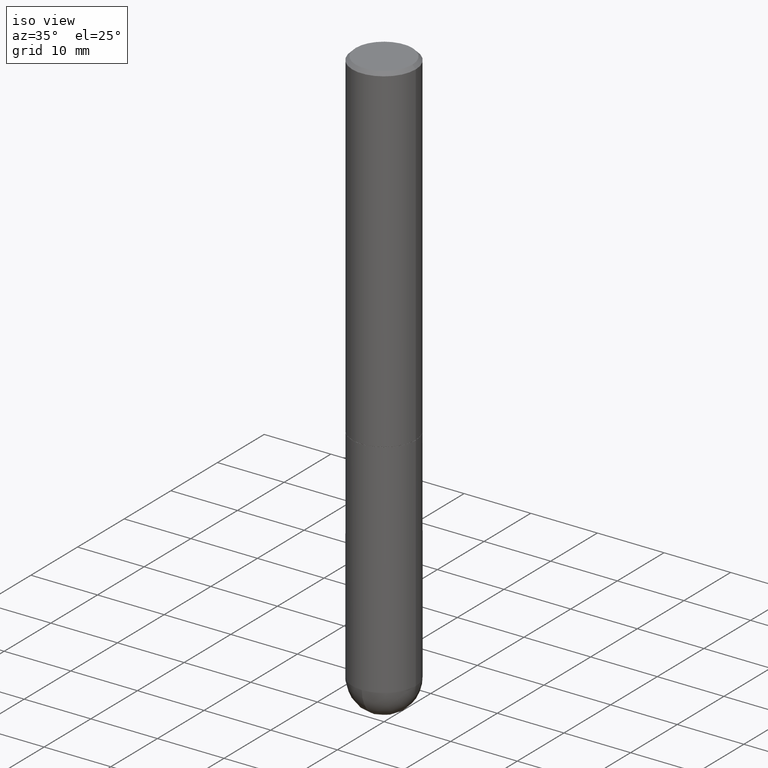
[diagram: clean part render]
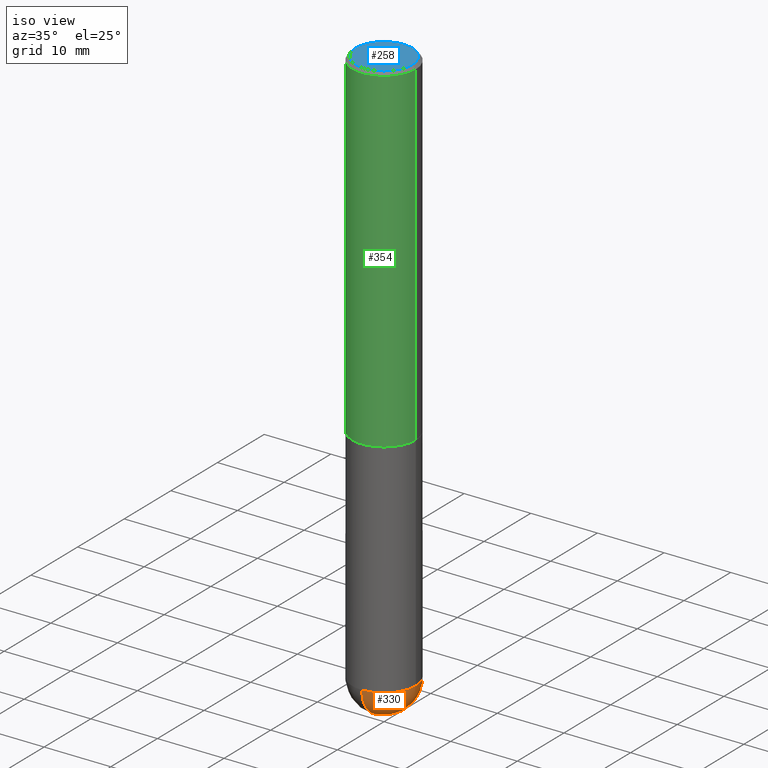
[diagram: same view with three faces highlighted in distinct colors, each labeled with its STEP entity id]
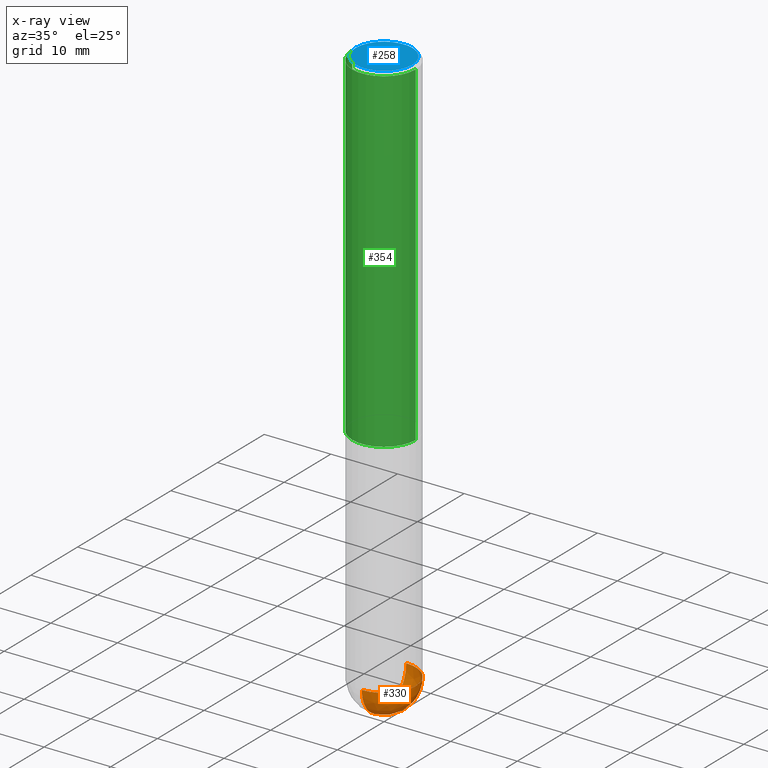
[diagram: x-ray of the same camera — body ghosted, the three highlighted faces saturated]
A machine part, iso view with three faces highlighted in distinct colors.
The next image is the same camera in x-ray (body ghosted, the three faces saturated) — at least one of them is partly hidden behind the body in this view.
Their STEP definitions:

[orange] entity #330 — the highlighted spherical surface has radius 4.7625 mm.
#7 = DIRECTION ( 'NONE',  ( -2.445468806185136597E-29, 3.491481338843145583E-15, 1.000000000000000000 ) ) ;
#8 = EDGE_CURVE ( 'NONE', #270, #154, #108, .T. ) ;
#26 = ORIENTED_EDGE ( 'NONE', *, *, #75, .F. ) ;
#42 = CARTESIAN_POINT ( 'NONE',  ( 8.100615420488263856E-29, -1.156553193491791947E-14, -3.312499999999999556 ) ) ;
#46 = CIRCLE ( 'NONE', #160, 0.1874999999999999722 ) ;
#67 = CARTESIAN_POINT ( 'NONE',  ( 8.100615420488263856E-29, -1.156553193491791947E-14, -3.312499999999999556 ) ) ;
#75 = EDGE_CURVE ( 'NONE', #214, #86, #46, .T. ) ;
#76 = DIRECTION ( 'NONE',  ( -7.105427357601001070E-15, -1.000000000000000000, 0.000000000000000000 ) ) ;
#78 = CARTESIAN_POINT ( 'NONE',  ( 7.769495642574377609E-29, -1.203971430305797135E-14, -3.312499999999999556 ) ) ;
#86 = VERTEX_POINT ( 'NONE', #259 ) ;
#92 = AXIS2_PLACEMENT_3D ( 'NONE', #140, #386, #391 ) ;
#94 = CARTESIAN_POINT ( 'NONE',  ( 1.309305502066255275E-15, 0.1874999999999883149, -3.312500000000000444 ) ) ;
#107 = DIRECTION ( 'NONE',  ( 1.000000000000000000, -6.982962677686263555E-15, 0.000000000000000000 ) ) ;
#108 = CIRCLE ( 'NONE', #247, 0.1875000000000002776 ) ;
#112 = CARTESIAN_POINT ( 'NONE',  ( 8.236038227695147558E-29, -1.268288599034905401E-14, -3.500000000000000000 ) ) ;
#122 = AXIS2_PLACEMENT_3D ( 'NONE', #42, #7, #107 ) ;
#139 = ORIENTED_EDGE ( 'NONE', *, *, #238, .F. ) ;
#140 = CARTESIAN_POINT ( 'NONE',  ( 7.769495642574377609E-29, -1.203971430305797135E-14, -3.312499999999999556 ) ) ;
#141 = CARTESIAN_POINT ( 'NONE',  ( -1.332267629550109160E-15, -0.1875000000000119349, -3.312499999999999112 ) ) ;
#152 = CIRCLE ( 'NONE', #122, 0.1874999999999999722 ) ;
#154 = VERTEX_POINT ( 'NONE', #94 ) ;
#160 = AXIS2_PLACEMENT_3D ( 'NONE', #67, #321, #230 ) ;
#167 = CARTESIAN_POINT ( 'NONE',  ( 7.769495642574377609E-29, -1.203971430305797135E-14, -3.312499999999999556 ) ) ;
#169 = ORIENTED_EDGE ( 'NONE', *, *, #220, .F. ) ;
#188 = EDGE_LOOP ( 'NONE', ( #139, #412, #169, #26 ) ) ;
#214 = VERTEX_POINT ( 'NONE', #141 ) ;
#220 = EDGE_CURVE ( 'NONE', #86, #154, #152, .T. ) ;
#230 = DIRECTION ( 'NONE',  ( 1.000000000000000000, -6.982962677686263555E-15, 0.000000000000000000 ) ) ;
#238 = EDGE_CURVE ( 'NONE', #270, #214, #346, .T. ) ;
#247 = AXIS2_PLACEMENT_3D ( 'NONE', #167, #287, #403 ) ;
#250 = SPHERICAL_SURFACE ( 'NONE', #92, 0.1875000000000002776 ) ;
#259 = CARTESIAN_POINT ( 'NONE',  ( 0.1874999999999999722, -1.058355280836828072E-14, -3.312499999999999556 ) ) ;
#270 = VERTEX_POINT ( 'NONE', #112 ) ;
#287 = DIRECTION ( 'NONE',  ( 1.000000000000000000, -6.982962677686265922E-15, 4.883557194083112340E-29 ) ) ;
#299 = FACE_OUTER_BOUND ( 'NONE', #188, .T. ) ;
#321 = DIRECTION ( 'NONE',  ( -2.445468806185136597E-29, 3.491481338843145583E-15, 1.000000000000000000 ) ) ;
#330 = ADVANCED_FACE ( 'NONE', ( #299 ), #250, .T. ) ;
#346 = CIRCLE ( 'NONE', #395, 0.1875000000000002776 ) ;
#363 = DIRECTION ( 'NONE',  ( -1.000000000000000000, 7.105427357601001070E-15, -4.926315508542082329E-29 ) ) ;
#386 = DIRECTION ( 'NONE',  ( -1.000000000000000000, 6.982962677686266711E-15, -4.883557194083112340E-29 ) ) ;
#391 = DIRECTION ( 'NONE',  ( 6.982962677686266711E-15, 1.000000000000000000, -2.913971193241876428E-15 ) ) ;
#395 = AXIS2_PLACEMENT_3D ( 'NONE', #78, #363, #76 ) ;
#403 = DIRECTION ( 'NONE',  ( 6.982962677686266711E-15, 1.000000000000000000, 0.000000000000000000 ) ) ;
#412 = ORIENTED_EDGE ( 'NONE', *, *, #8, .T. ) ;

[blue] entity #258 — the highlighted planar face has unit normal (0, -0, -1).
#27 = CARTESIAN_POINT ( 'NONE',  ( -6.263108486011318528E-46, 8.942059022282683748E-32, 2.561107494060246767E-17 ) ) ;
#37 = PLANE ( 'NONE',  #91 ) ;
#59 = EDGE_LOOP ( 'NONE', ( #312, #316 ) ) ;
#61 = EDGE_CURVE ( 'NONE', #309, #186, #298, .T. ) ;
#74 = DIRECTION ( 'NONE',  ( 2.438088387897960049E-29, -3.491481338843145188E-15, -1.000000000000000000 ) ) ;
#91 = AXIS2_PLACEMENT_3D ( 'NONE', #333, #74, #296 ) ;
#144 = CIRCLE ( 'NONE', #233, 0.1674999999999999545 ) ;
#147 = EDGE_CURVE ( 'NONE', #186, #309, #144, .T. ) ;
#186 = VERTEX_POINT ( 'NONE', #244 ) ;
#233 = AXIS2_PLACEMENT_3D ( 'NONE', #27, #288, #400 ) ;
#244 = CARTESIAN_POINT ( 'NONE',  ( -0.1674999999999999545, 1.204561061900880455E-15, 2.561107494059416614E-17 ) ) ;
#251 = DIRECTION ( 'NONE',  ( 1.000000000000000000, -6.982962677686266711E-15, 4.875370901645442309E-29 ) ) ;
#258 = ADVANCED_FACE ( 'NONE', ( #338 ), #37, .F. ) ;
#273 = CARTESIAN_POINT ( 'NONE',  ( 0.1674999999999999545, -1.252653207992878091E-15, 2.561107494061093868E-17 ) ) ;
#281 = AXIS2_PLACEMENT_3D ( 'NONE', #308, #335, #251 ) ;
#288 = DIRECTION ( 'NONE',  ( -2.445468806185136597E-29, 3.491481338843145583E-15, 1.000000000000000000 ) ) ;
#296 = DIRECTION ( 'NONE',  ( -1.000000000000000000, 6.982962677686265922E-15, -4.876176775795935793E-29 ) ) ;
#298 = CIRCLE ( 'NONE', #281, 0.1674999999999999545 ) ;
#308 = CARTESIAN_POINT ( 'NONE',  ( -6.263108486011318528E-46, 8.942059022282683748E-32, 2.561107494060246767E-17 ) ) ;
#309 = VERTEX_POINT ( 'NONE', #273 ) ;
#312 = ORIENTED_EDGE ( 'NONE', *, *, #147, .T. ) ;
#316 = ORIENTED_EDGE ( 'NONE', *, *, #61, .T. ) ;
#333 = CARTESIAN_POINT ( 'NONE',  ( 1.169646248512449398E-15, 0.1674999999999999545, -5.720175867859254897E-16 ) ) ;
#335 = DIRECTION ( 'NONE',  ( -2.445468806185136597E-29, 3.491481338843145583E-15, 1.000000000000000000 ) ) ;
#338 = FACE_OUTER_BOUND ( 'NONE', #59, .T. ) ;
#400 = DIRECTION ( 'NONE',  ( 1.000000000000000000, -6.982962677686266711E-15, 4.875370901645442309E-29 ) ) ;

[green] entity #354 — the highlighted cylindrical surface (partial cylindrical patch) has radius 4.7625 mm, axis along (-0, 0, 1).
#1 = DIRECTION ( 'NONE',  ( -2.445468806185136877E-29, 3.491481338843145188E-15, 1.000000000000000000 ) ) ;
#9 = DIRECTION ( 'NONE',  ( -2.445468806185136877E-29, 3.491481338843145188E-15, 1.000000000000000000 ) ) ;
#38 = AXIS2_PLACEMENT_3D ( 'NONE', #405, #286, #129 ) ;
#40 = CARTESIAN_POINT ( 'NONE',  ( -0.1874999999999999722, 1.239475875289311710E-15, -0.02000000000000003858 ) ) ;
#52 = VERTEX_POINT ( 'NONE', #274 ) ;
#54 = ORIENTED_EDGE ( 'NONE', *, *, #156, .T. ) ;
#55 = ORIENTED_EDGE ( 'NONE', *, *, #166, .T. ) ;
#60 = DIRECTION ( 'NONE',  ( -2.445468806185136597E-29, 3.491481338843145583E-15, 1.000000000000000000 ) ) ;
#63 = CARTESIAN_POINT ( 'NONE',  ( 0.1875000000000001110, -1.309305502066175797E-15, 9.142831454617385217E-30 ) ) ;
#72 = CARTESIAN_POINT ( 'NONE',  ( 0.1874999999999999722, -1.356173001359025269E-15, -0.02000000000000003858 ) ) ;
#84 = VERTEX_POINT ( 'NONE', #284 ) ;
#85 = EDGE_CURVE ( 'NONE', #236, #318, #289, .T. ) ;
#101 = AXIS2_PLACEMENT_3D ( 'NONE', #209, #60, #373 ) ;
#111 = EDGE_LOOP ( 'NONE', ( #331, #55, #54, #130 ) ) ;
#114 = CYLINDRICAL_SURFACE ( 'NONE', #272, 0.1875000000000001110 ) ;
#116 = CARTESIAN_POINT ( 'NONE',  ( 0.000000000000000000, 0.000000000000000000, 0.000000000000000000 ) ) ;
#129 = DIRECTION ( 'NONE',  ( 1.000000000000000000, -6.982962677686268288E-15, 0.000000000000000000 ) ) ;
#130 = ORIENTED_EDGE ( 'NONE', *, *, #85, .F. ) ;
#143 = LINE ( 'NONE', #387, #314 ) ;
#156 = EDGE_CURVE ( 'NONE', #52, #318, #295, .T. ) ;
#166 = EDGE_CURVE ( 'NONE', #84, #52, #223, .T. ) ;
#209 = CARTESIAN_POINT ( 'NONE',  ( 4.890937612370282792E-31, -6.982962677686303935E-17, -0.02000000000000003858 ) ) ;
#223 = CIRCLE ( 'NONE', #38, 0.1875000000000002776 ) ;
#225 = DIRECTION ( 'NONE',  ( -2.445468806185136597E-29, 3.491481338843145583E-15, 1.000000000000000000 ) ) ;
#236 = VERTEX_POINT ( 'NONE', #40 ) ;
#272 = AXIS2_PLACEMENT_3D ( 'NONE', #116, #225, #366 ) ;
#274 = CARTESIAN_POINT ( 'NONE',  ( 0.1875000000000002776, -8.288776698413623955E-15, -1.998999999999999666 ) ) ;
#275 = FACE_OUTER_BOUND ( 'NONE', #111, .T. ) ;
#284 = CARTESIAN_POINT ( 'NONE',  ( -0.1875000000000002776, -2.192382782011961963E-15, -1.998999999999999666 ) ) ;
#286 = DIRECTION ( 'NONE',  ( -2.445468806185136597E-29, 3.491481338843145583E-15, 1.000000000000000000 ) ) ;
#289 = CIRCLE ( 'NONE', #101, 0.1874999999999999722 ) ;
#295 = LINE ( 'NONE', #63, #382 ) ;
#302 = EDGE_CURVE ( 'NONE', #84, #236, #143, .T. ) ;
#314 = VECTOR ( 'NONE', #9, 39.37007874015748143 ) ;
#318 = VERTEX_POINT ( 'NONE', #72 ) ;
#331 = ORIENTED_EDGE ( 'NONE', *, *, #302, .F. ) ;
#354 = ADVANCED_FACE ( 'NONE', ( #275 ), #114, .T. ) ;
#366 = DIRECTION ( 'NONE',  ( 1.000000000000000000, -6.982962677686266711E-15, 4.876176775795935793E-29 ) ) ;
#373 = DIRECTION ( 'NONE',  ( 1.000000000000000000, -6.982962677686266711E-15, 0.000000000000000000 ) ) ;
#382 = VECTOR ( 'NONE', #1, 39.37007874015748143 ) ;
#387 = CARTESIAN_POINT ( 'NONE',  ( -0.1875000000000001110, 1.332267629550188637E-15, -9.223003294227953596E-30 ) ) ;
#405 = CARTESIAN_POINT ( 'NONE',  ( 4.888492143564087030E-29, -6.979471196347446580E-15, -1.998999999999999666 ) ) ;